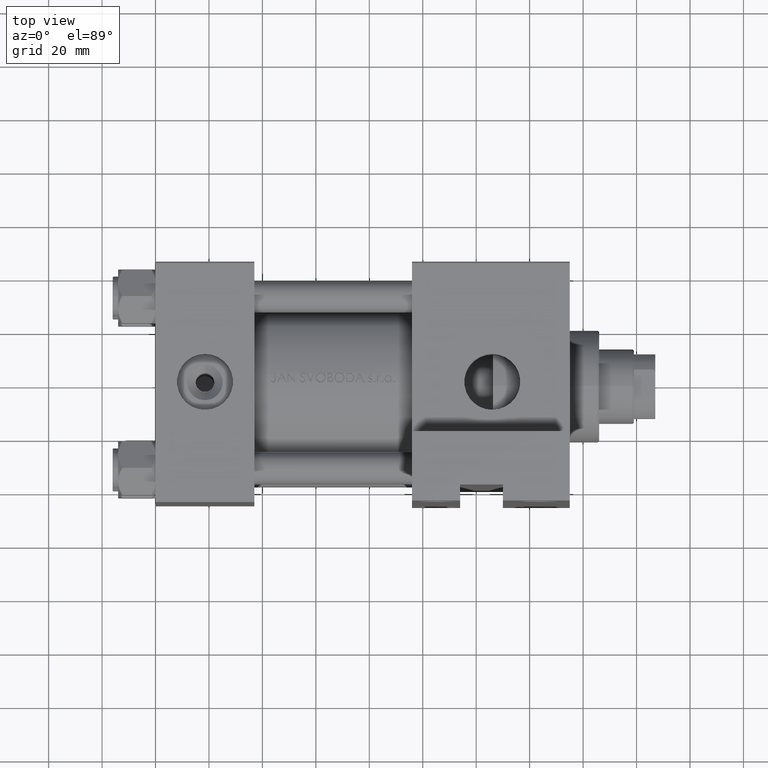
[diagram: clean part render]
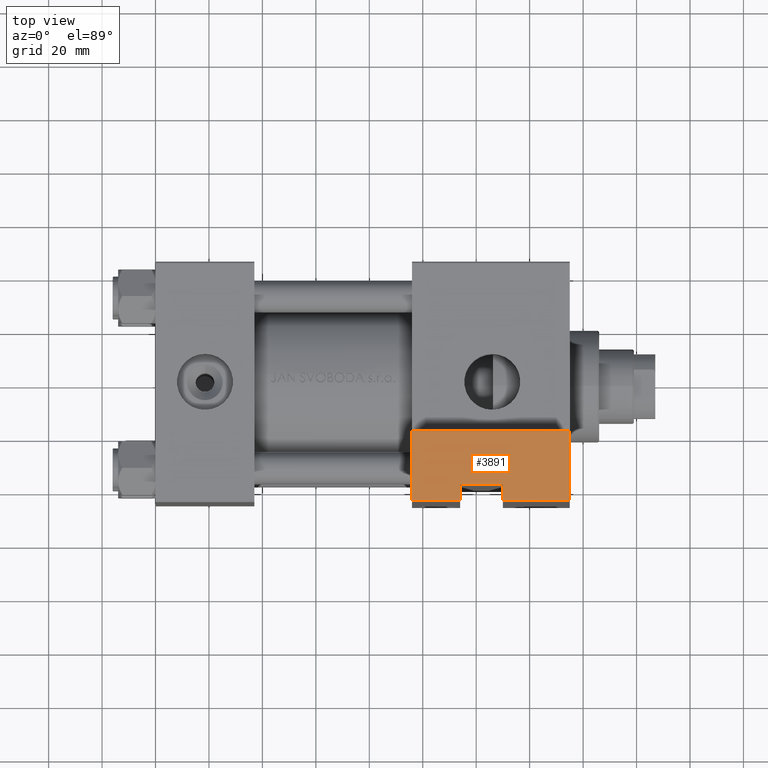
[diagram: same view with one face highlighted and labeled with its STEP entity id]
A machine part, top view. The second image highlights one B-rep face of the part: STEP entity #3891.
In plain terms, the highlighted planar face has unit normal (-0, 0, 1).
Its self-contained STEP definition (entity closure, byte-faithful):
#1469 = CARTESIAN_POINT ( 'NONE',  ( 129.9999999999999716, -80.00000000000001421, -39.00000000000000000 ) ) ;
#3419 = CARTESIAN_POINT ( 'NONE',  ( 95.99999999999998579, -79.99999999999998579, -19.00000000000000000 ) ) ;
#3891 = ADVANCED_FACE ( 'NONE', ( #30461 ), #45810, .T. ) ;
#4776 = VERTEX_POINT ( 'NONE', #32696 ) ;
#4798 = LINE ( 'NONE', #20122, #15510 ) ;
#5293 = VERTEX_POINT ( 'NONE', #1469 ) ;
#6045 = DIRECTION ( 'NONE',  ( -1.000000000000000000, 7.056502275159895171E-16, -0.000000000000000000 ) ) ;
#6539 = EDGE_CURVE ( 'NONE', #33846, #45665, #34074, .T. ) ;
#6922 = CARTESIAN_POINT ( 'NONE',  ( 113.9999999999999858, -79.99999999999997158, -39.00000000000000000 ) ) ;
#7328 = DIRECTION ( 'NONE',  ( 1.000000000000000000, -7.056502275159896157E-16, 0.000000000000000000 ) ) ;
#7354 = EDGE_CURVE ( 'NONE', #5293, #48944, #34001, .T. ) ;
#8311 = ORIENTED_EDGE ( 'NONE', *, *, #7354, .T. ) ;
#8979 = EDGE_LOOP ( 'NONE', ( #8311, #11582, #19687, #40472, #31439, #45941, #31745, #48264 ) ) ;
#9787 = VECTOR ( 'NONE', #18735, 1000.000000000000000 ) ;
#11582 = ORIENTED_EDGE ( 'NONE', *, *, #47758, .F. ) ;
#13716 = CARTESIAN_POINT ( 'NONE',  ( 95.99999999999998579, -79.99999999999998579, -19.00000000000000000 ) ) ;
#14670 = VERTEX_POINT ( 'NONE', #18059 ) ;
#14831 = VERTEX_POINT ( 'NONE', #13716 ) ;
#15230 = CARTESIAN_POINT ( 'NONE',  ( 95.99999999999998579, -79.99999999999998579, -19.00000000000000000 ) ) ;
#15510 = VECTOR ( 'NONE', #6045, 1000.000000000000000 ) ;
#15635 = LINE ( 'NONE', #30994, #16220 ) ;
#16220 = VECTOR ( 'NONE', #46336, 1000.000000000000000 ) ;
#18059 = CARTESIAN_POINT ( 'NONE',  ( 154.9999999999999716, -80.00000000000002842, -19.00000000000000000 ) ) ;
#18183 = EDGE_CURVE ( 'NONE', #14670, #48179, #43161, .T. ) ;
#18735 = DIRECTION ( 'NONE',  ( -1.000000000000000000, 7.056502275159895171E-16, -0.000000000000000000 ) ) ;
#18756 = VECTOR ( 'NONE', #33748, 1000.000000000000000 ) ;
#19209 = EDGE_CURVE ( 'NONE', #5293, #4776, #49659, .T. ) ;
#19510 = CARTESIAN_POINT ( 'NONE',  ( 154.9999999999999716, -80.00000000000002842, -19.00000000000000000 ) ) ;
#19687 = ORIENTED_EDGE ( 'NONE', *, *, #18183, .F. ) ;
#20061 = EDGE_CURVE ( 'NONE', #14670, #14831, #34845, .T. ) ;
#20122 = CARTESIAN_POINT ( 'NONE',  ( 95.99999999999998579, -79.99999999999998579, -45.00000000000000000 ) ) ;
#22592 = CARTESIAN_POINT ( 'NONE',  ( 129.9999999999999716, -79.99999999999997158, -45.00000000000000000 ) ) ;
#26280 = CARTESIAN_POINT ( 'NONE',  ( 95.99999999999998579, -79.99999999999998579, -45.00000000000000000 ) ) ;
#29975 = VECTOR ( 'NONE', #41631, 1000.000000000000000 ) ;
#30461 = FACE_OUTER_BOUND ( 'NONE', #8979, .T. ) ;
#30576 = DIRECTION ( 'NONE',  ( 0.000000000000000000, 0.000000000000000000, -1.000000000000000000 ) ) ;
#30994 = CARTESIAN_POINT ( 'NONE',  ( 113.9999999999999858, -79.99999999999997158, -39.00000000000000000 ) ) ;
#31288 = AXIS2_PLACEMENT_3D ( 'NONE', #42783, #38015, #7328 ) ;
#31439 = ORIENTED_EDGE ( 'NONE', *, *, #46143, .T. ) ;
#31745 = ORIENTED_EDGE ( 'NONE', *, *, #41069, .F. ) ;
#32696 = CARTESIAN_POINT ( 'NONE',  ( 113.9999999999999858, -79.99999999999997158, -39.00000000000000000 ) ) ;
#33748 = DIRECTION ( 'NONE',  ( -0.000000000000000000, -0.000000000000000000, -1.000000000000000000 ) ) ;
#33846 = VERTEX_POINT ( 'NONE', #48686 ) ;
#33915 = VECTOR ( 'NONE', #34874, 1000.000000000000000 ) ;
#34001 = LINE ( 'NONE', #49348, #18756 ) ;
#34074 = LINE ( 'NONE', #26280, #29975 ) ;
#34325 = DIRECTION ( 'NONE',  ( -1.000000000000000000, -0.000000000000000000, -0.000000000000000000 ) ) ;
#34845 = LINE ( 'NONE', #3419, #9787 ) ;
#34874 = DIRECTION ( 'NONE',  ( 0.000000000000000000, 0.000000000000000000, -1.000000000000000000 ) ) ;
#38015 = DIRECTION ( 'NONE',  ( -7.056502275159896157E-16, -1.000000000000000000, 0.000000000000000000 ) ) ;
#38141 = LINE ( 'NONE', #15230, #44367 ) ;
#38435 = CARTESIAN_POINT ( 'NONE',  ( 95.99999999999998579, -79.99999999999998579, -45.00000000000000000 ) ) ;
#39912 = CARTESIAN_POINT ( 'NONE',  ( 154.9999999999999716, -80.00000000000002842, -45.00000000000000000 ) ) ;
#40472 = ORIENTED_EDGE ( 'NONE', *, *, #20061, .T. ) ;
#41069 = EDGE_CURVE ( 'NONE', #4776, #33846, #15635, .T. ) ;
#41631 = DIRECTION ( 'NONE',  ( -1.000000000000000000, 7.056502275159895171E-16, -0.000000000000000000 ) ) ;
#42783 = CARTESIAN_POINT ( 'NONE',  ( 95.99999999999998579, -79.99999999999998579, -19.00000000000000000 ) ) ;
#43161 = LINE ( 'NONE', #19510, #33915 ) ;
#44367 = VECTOR ( 'NONE', #30576, 1000.000000000000000 ) ;
#45665 = VERTEX_POINT ( 'NONE', #38435 ) ;
#45810 = PLANE ( 'NONE',  #31288 ) ;
#45941 = ORIENTED_EDGE ( 'NONE', *, *, #6539, .F. ) ;
#46143 = EDGE_CURVE ( 'NONE', #14831, #45665, #38141, .T. ) ;
#46336 = DIRECTION ( 'NONE',  ( -0.000000000000000000, -0.000000000000000000, -1.000000000000000000 ) ) ;
#46708 = VECTOR ( 'NONE', #34325, 1000.000000000000000 ) ;
#47758 = EDGE_CURVE ( 'NONE', #48179, #48944, #4798, .T. ) ;
#48179 = VERTEX_POINT ( 'NONE', #39912 ) ;
#48264 = ORIENTED_EDGE ( 'NONE', *, *, #19209, .F. ) ;
#48686 = CARTESIAN_POINT ( 'NONE',  ( 113.9999999999999858, -79.99999999999997158, -45.00000000000000000 ) ) ;
#48944 = VERTEX_POINT ( 'NONE', #22592 ) ;
#49348 = CARTESIAN_POINT ( 'NONE',  ( 129.9999999999999716, -79.99999999999997158, -39.00000000000000000 ) ) ;
#49659 = LINE ( 'NONE', #6922, #46708 ) ;